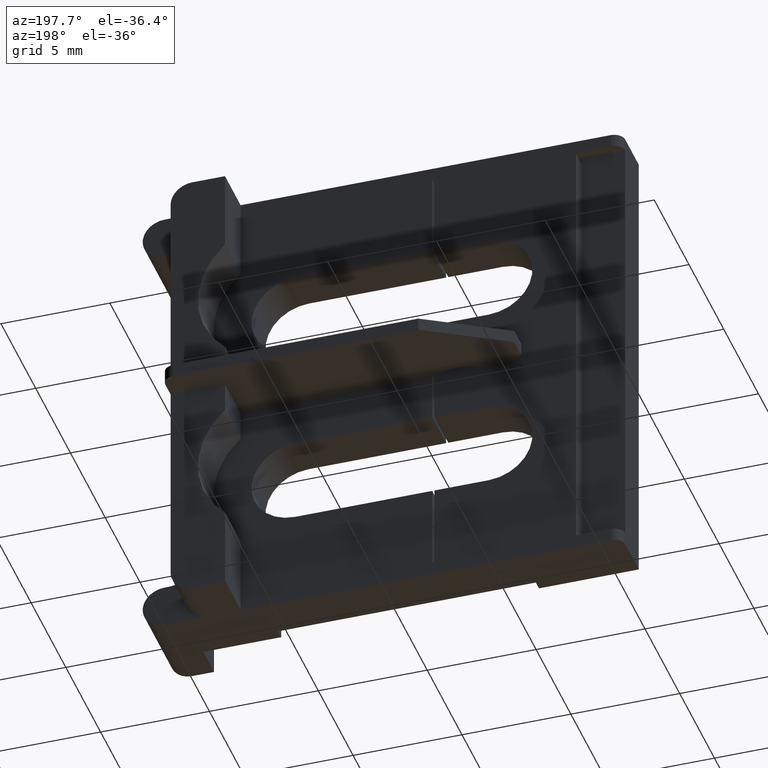
[diagram: clean part render]
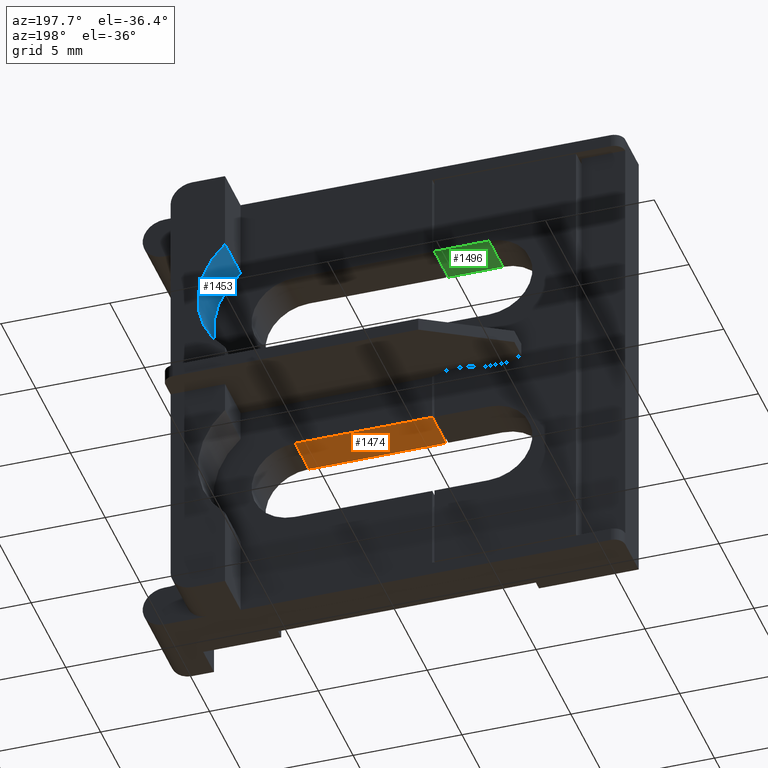
[diagram: same view with three faces highlighted in distinct colors, each labeled with its STEP entity id]
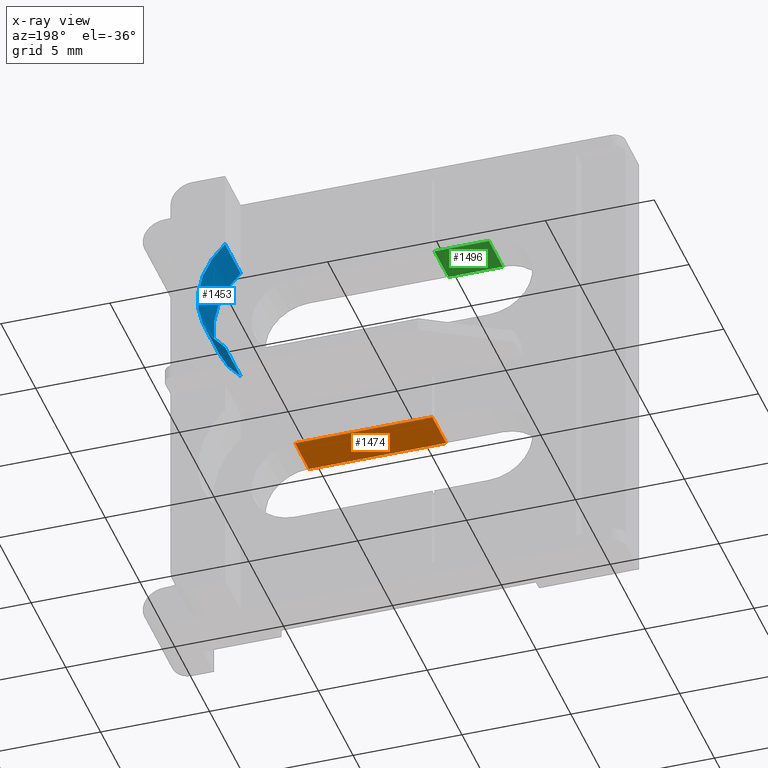
[diagram: x-ray of the same camera — body ghosted, the three highlighted faces saturated]
A machine part, auxiliary view with three faces highlighted in distinct colors.
The next image is the same camera in x-ray (body ghosted, the three faces saturated) — at least one of them is partly hidden behind the body in this view.
Their STEP definitions:

[orange] entity #1474 — the highlighted planar face has unit normal (-0, 0, 1).
#91 = AXIS2_PLACEMENT_3D ( 'NONE', #2070, #2068, #2062 ) ;
#126 = VECTOR ( 'NONE', #2326, 1000.000000000000000 ) ;
#286 = VECTOR ( 'NONE', #2540, 1000.000000000000000 ) ;
#287 = VECTOR ( 'NONE', #2544, 1000.000000000000000 ) ;
#382 = VECTOR ( 'NONE', #1814, 1000.000000000000000 ) ;
#613 = EDGE_LOOP ( 'NONE', ( #1195, #1271, #1221, #1305 ) ) ;
#659 = VERTEX_POINT ( 'NONE', #662 ) ;
#662 = CARTESIAN_POINT ( 'NONE',  ( 459.1252094327940100, 144.0878730676890000, 9.099999999999999600 ) ) ;
#671 = VERTEX_POINT ( 'NONE', #841 ) ;
#735 = VERTEX_POINT ( 'NONE', #918 ) ;
#820 = VERTEX_POINT ( 'NONE', #1003 ) ;
#841 = CARTESIAN_POINT ( 'NONE',  ( 452.8252094327941700, 144.0878730676890000, 9.100000000000010300 ) ) ;
#918 = CARTESIAN_POINT ( 'NONE',  ( 459.1252094327940100, 146.0878730676890000, 9.099999999999999600 ) ) ;
#1003 = CARTESIAN_POINT ( 'NONE',  ( 452.8252094327941700, 146.0878730676890000, 9.100000000000003200 ) ) ;
#1195 = ORIENTED_EDGE ( 'NONE', *, *, #1728, .F. ) ;
#1221 = ORIENTED_EDGE ( 'NONE', *, *, #1628, .F. ) ;
#1271 = ORIENTED_EDGE ( 'NONE', *, *, #1620, .F. ) ;
#1305 = ORIENTED_EDGE ( 'NONE', *, *, #1552, .T. ) ;
#1474 = ADVANCED_FACE ( 'NONE', ( #2067 ), #2073, .F. ) ;
#1552 = EDGE_CURVE ( 'NONE', #735, #659, #2342, .T. ) ;
#1620 = EDGE_CURVE ( 'NONE', #820, #671, #2534, .T. ) ;
#1628 = EDGE_CURVE ( 'NONE', #735, #820, #2527, .T. ) ;
#1728 = EDGE_CURVE ( 'NONE', #671, #659, #1822, .T. ) ;
#1814 = DIRECTION ( 'NONE',  ( 1.000000000000000000, 2.530253133731424900E-033, -6.916643862731900400E-053 ) ) ;
#1822 = LINE ( 'NONE', #1836, #382 ) ;
#1836 = CARTESIAN_POINT ( 'NONE',  ( 479.5850360910420100, 144.0878730676890000, 9.100000000000003200 ) ) ;
#2062 = DIRECTION ( 'NONE',  ( 1.000000000000000000, 0.0000000000000000000, 3.492165866658340700E-015 ) ) ;
#2067 = FACE_OUTER_BOUND ( 'NONE', #613, .T. ) ;
#2068 = DIRECTION ( 'NONE',  ( -3.492165866658340700E-015, 2.733577826868160200E-020, 1.000000000000000000 ) ) ;
#2070 = CARTESIAN_POINT ( 'NONE',  ( 450.1252094327940700, 136.9878730676890100, 9.099999999999999600 ) ) ;
#2073 = PLANE ( 'NONE',  #91 ) ;
#2318 = CARTESIAN_POINT ( 'NONE',  ( 459.1252094327940100, 136.9878730676890100, 9.099999999999999600 ) ) ;
#2326 = DIRECTION ( 'NONE',  ( 2.530253133731424900E-033, -1.000000000000000000, 2.733577826868160200E-020 ) ) ;
#2342 = LINE ( 'NONE', #2318, #126 ) ;
#2526 = CARTESIAN_POINT ( 'NONE',  ( 452.8252094327941700, 136.9878730676890100, 9.100000000000010300 ) ) ;
#2527 = LINE ( 'NONE', #2533, #287 ) ;
#2533 = CARTESIAN_POINT ( 'NONE',  ( 457.5799457489669600, 146.0878730676890000, 9.099999999999999600 ) ) ;
#2534 = LINE ( 'NONE', #2526, #286 ) ;
#2540 = DIRECTION ( 'NONE',  ( -9.546107180843072800E-035, -1.000000000000000000, 2.733577826868160200E-020 ) ) ;
#2544 = DIRECTION ( 'NONE',  ( -1.000000000000000000, -2.530253133731424900E-033, 6.916643862731900400E-053 ) ) ;

[blue] entity #1453 — the highlighted cylindrical surface (partial cylindrical patch) has radius 3.75 mm, axis along (-0, 1, -0).
#106 = AXIS2_PLACEMENT_3D ( 'NONE', #1955, #1952, #1995 ) ;
#111 = VECTOR ( 'NONE', #2023, 1000.000000000000000 ) ;
#127 = AXIS2_PLACEMENT_3D ( 'NONE', #2352, #2364, #2378 ) ;
#136 = AXIS2_PLACEMENT_3D ( 'NONE', #2223, #2229, #2230 ) ;
#153 = VECTOR ( 'NONE', #2272, 1000.000000000000000 ) ;
#170 = CIRCLE ( 'NONE', #136, 3.750000000000000000 ) ;
#175 = CIRCLE ( 'NONE', #127, 3.750000000000000000 ) ;
#635 = EDGE_LOOP ( 'NONE', ( #1227, #1123, #1234, #1228 ) ) ;
#698 = VERTEX_POINT ( 'NONE', #881 ) ;
#744 = VERTEX_POINT ( 'NONE', #898 ) ;
#748 = VERTEX_POINT ( 'NONE', #937 ) ;
#788 = VERTEX_POINT ( 'NONE', #955 ) ;
#881 = CARTESIAN_POINT ( 'NONE',  ( 461.6252094327939500, 146.0878730676890000, 13.30491502812540200 ) ) ;
#898 = CARTESIAN_POINT ( 'NONE',  ( 461.6252094327939500, 146.0878730676890000, 18.89508497187494400 ) ) ;
#937 = CARTESIAN_POINT ( 'NONE',  ( 461.6252094327939500, 148.3378730676890000, 13.30491502812540200 ) ) ;
#955 = CARTESIAN_POINT ( 'NONE',  ( 461.6252094327939500, 148.3378730676890000, 18.89508497187494400 ) ) ;
#1123 = ORIENTED_EDGE ( 'NONE', *, *, #1512, .T. ) ;
#1227 = ORIENTED_EDGE ( 'NONE', *, *, #1531, .T. ) ;
#1228 = ORIENTED_EDGE ( 'NONE', *, *, #1559, .F. ) ;
#1234 = ORIENTED_EDGE ( 'NONE', *, *, #1470, .F. ) ;
#1453 = ADVANCED_FACE ( 'NONE', ( #1979 ), #1951, .F. ) ;
#1470 = EDGE_CURVE ( 'NONE', #698, #748, #2016, .T. ) ;
#1512 = EDGE_CURVE ( 'NONE', #788, #748, #170, .T. ) ;
#1531 = EDGE_CURVE ( 'NONE', #744, #788, #2281, .T. ) ;
#1559 = EDGE_CURVE ( 'NONE', #744, #698, #175, .T. ) ;
#1951 = CYLINDRICAL_SURFACE ( 'NONE', #106, 3.750000000000000000 ) ;
#1952 = DIRECTION ( 'NONE',  ( -2.530253133731424900E-033, 1.000000000000000000, -2.733577826868160200E-020 ) ) ;
#1955 = CARTESIAN_POINT ( 'NONE',  ( 459.1252094327940100, 111.3976727223466000, 16.10000000000018300 ) ) ;
#1979 = FACE_OUTER_BOUND ( 'NONE', #635, .T. ) ;
#1995 = DIRECTION ( 'NONE',  ( 0.0000000000000000000, 0.0000000000000000000, 1.000000000000000000 ) ) ;
#2016 = LINE ( 'NONE', #2032, #111 ) ;
#2023 = DIRECTION ( 'NONE',  ( -2.530253133731424900E-033, 1.000000000000000000, -2.733577826868160200E-020 ) ) ;
#2032 = CARTESIAN_POINT ( 'NONE',  ( 461.6252094327939500, 111.3976727223466000, 13.30491502812540500 ) ) ;
#2223 = CARTESIAN_POINT ( 'NONE',  ( 459.1252094327940100, 148.3378730676890000, 16.10000000000018300 ) ) ;
#2229 = DIRECTION ( 'NONE',  ( -2.530253133731424900E-033, 1.000000000000000000, -2.733577826868160200E-020 ) ) ;
#2230 = DIRECTION ( 'NONE',  ( 0.0000000000000000000, 0.0000000000000000000, 1.000000000000000000 ) ) ;
#2272 = DIRECTION ( 'NONE',  ( -2.625714205539854300E-033, 1.000000000000000000, -9.169429524186070000E-048 ) ) ;
#2280 = CARTESIAN_POINT ( 'NONE',  ( 461.6252094327939500, 111.3976727223466000, 18.89508497187491900 ) ) ;
#2281 = LINE ( 'NONE', #2280, #153 ) ;
#2352 = CARTESIAN_POINT ( 'NONE',  ( 459.1252094327940100, 146.0878730676890000, 16.10000000000018300 ) ) ;
#2364 = DIRECTION ( 'NONE',  ( -2.530253133731424900E-033, 1.000000000000000000, -2.733577826868160200E-020 ) ) ;
#2378 = DIRECTION ( 'NONE',  ( 0.0000000000000000000, 0.0000000000000000000, 1.000000000000000000 ) ) ;

[green] entity #1496 — the highlighted planar face has unit normal (-0, 0, 1).
#60 = AXIS2_PLACEMENT_3D ( 'NONE', #2136, #2171, #2167 ) ;
#79 = VECTOR ( 'NONE', #2160, 1000.000000000000000 ) ;
#141 = VECTOR ( 'NONE', #2271, 1000.000000000000000 ) ;
#319 = VECTOR ( 'NONE', #1760, 1000.000000000000000 ) ;
#369 = VECTOR ( 'NONE', #1829, 1000.000000000000000 ) ;
#640 = EDGE_LOOP ( 'NONE', ( #1130, #1154, #1148, #1120 ) ) ;
#666 = VERTEX_POINT ( 'NONE', #835 ) ;
#695 = VERTEX_POINT ( 'NONE', #856 ) ;
#729 = VERTEX_POINT ( 'NONE', #895 ) ;
#732 = VERTEX_POINT ( 'NONE', #842 ) ;
#835 = CARTESIAN_POINT ( 'NONE',  ( 452.7252094327939700, 144.0878730676890000, 18.10000000000010800 ) ) ;
#842 = CARTESIAN_POINT ( 'NONE',  ( 450.2252094327939700, 146.0878730676890000, 18.10000000000010800 ) ) ;
#856 = CARTESIAN_POINT ( 'NONE',  ( 450.2252094327939700, 144.0878730676890000, 18.10000000000011500 ) ) ;
#895 = CARTESIAN_POINT ( 'NONE',  ( 452.7252094327939700, 146.0878730676890000, 18.10000000000010800 ) ) ;
#1120 = ORIENTED_EDGE ( 'NONE', *, *, #1525, .T. ) ;
#1130 = ORIENTED_EDGE ( 'NONE', *, *, #1505, .F. ) ;
#1148 = ORIENTED_EDGE ( 'NONE', *, *, #1709, .T. ) ;
#1154 = ORIENTED_EDGE ( 'NONE', *, *, #1725, .F. ) ;
#1496 = ADVANCED_FACE ( 'NONE', ( #2135 ), #2116, .F. ) ;
#1505 = EDGE_CURVE ( 'NONE', #729, #732, #2197, .T. ) ;
#1525 = EDGE_CURVE ( 'NONE', #695, #732, #2262, .T. ) ;
#1709 = EDGE_CURVE ( 'NONE', #666, #695, #1769, .T. ) ;
#1725 = EDGE_CURVE ( 'NONE', #666, #729, #1840, .T. ) ;
#1760 = DIRECTION ( 'NONE',  ( -1.000000000000000000, -2.530253133731424900E-033, 6.916643862731900400E-053 ) ) ;
#1769 = LINE ( 'NONE', #1777, #319 ) ;
#1777 = CARTESIAN_POINT ( 'NONE',  ( 450.2252094327940300, 144.0878730676890000, 18.10000000000011200 ) ) ;
#1807 = CARTESIAN_POINT ( 'NONE',  ( 452.7252094327939700, 146.0878730676890000, 18.10000000000010800 ) ) ;
#1829 = DIRECTION ( 'NONE',  ( 9.546107180843072800E-035, 1.000000000000000000, -2.733577826868160200E-020 ) ) ;
#1840 = LINE ( 'NONE', #1807, #369 ) ;
#2116 = PLANE ( 'NONE',  #60 ) ;
#2135 = FACE_OUTER_BOUND ( 'NONE', #640, .T. ) ;
#2136 = CARTESIAN_POINT ( 'NONE',  ( 450.2252094327939700, 146.0878730676890000, 18.10000000000009700 ) ) ;
#2160 = DIRECTION ( 'NONE',  ( -1.000000000000000000, -0.0000000000000000000, -3.492165866658340700E-015 ) ) ;
#2167 = DIRECTION ( 'NONE',  ( 1.000000000000000000, 0.0000000000000000000, 3.492165866658340700E-015 ) ) ;
#2171 = DIRECTION ( 'NONE',  ( -3.492165866658340700E-015, 2.733577826868160200E-020, 1.000000000000000000 ) ) ;
#2176 = CARTESIAN_POINT ( 'NONE',  ( 450.2252094327939700, 146.0878730676890000, 18.10000000000009700 ) ) ;
#2197 = LINE ( 'NONE', #2176, #79 ) ;
#2261 = CARTESIAN_POINT ( 'NONE',  ( 450.2252094327939700, 146.0878730676890000, 18.10000000000012200 ) ) ;
#2262 = LINE ( 'NONE', #2261, #141 ) ;
#2271 = DIRECTION ( 'NONE',  ( -2.530253133731424900E-033, 1.000000000000000000, -2.733577826868160200E-020 ) ) ;